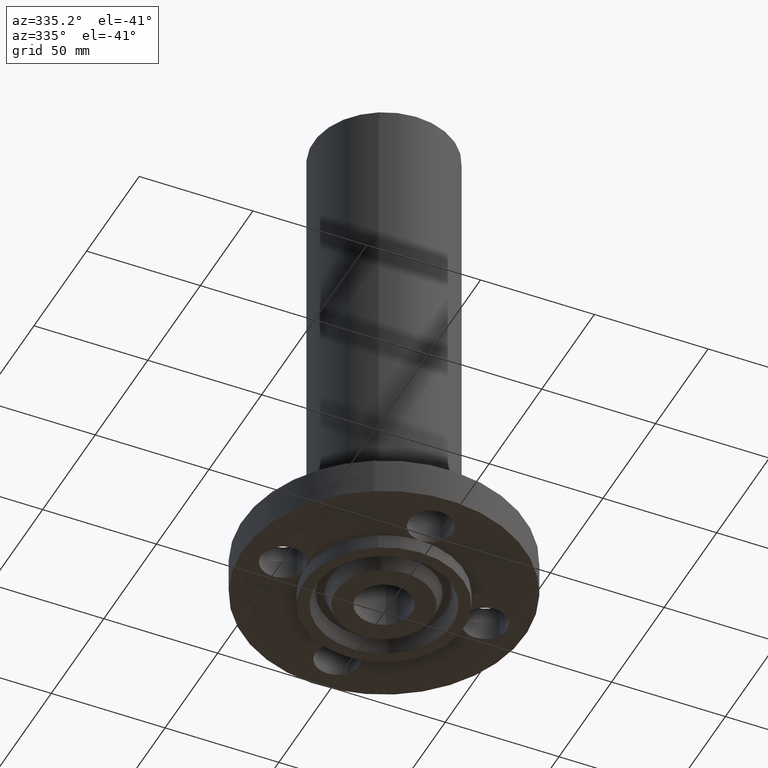
[diagram: clean part render]
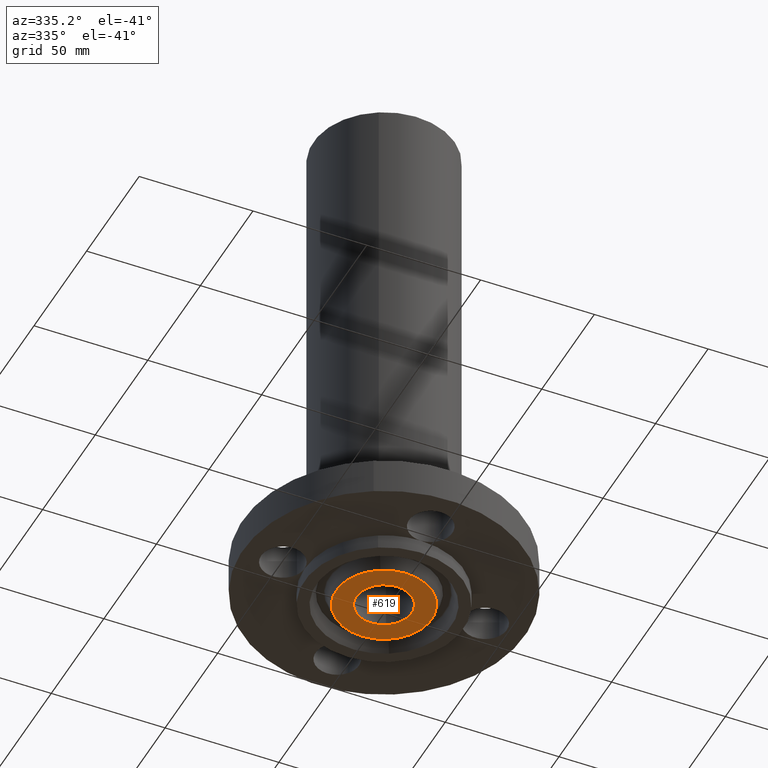
[diagram: same view with one face highlighted and labeled with its STEP entity id]
A machine part, auxiliary view. The second image highlights one B-rep face of the part: STEP entity #619.
In plain terms, the highlighted planar face has unit normal (0, 0, -1).
Its self-contained STEP definition (entity closure, byte-faithful):
#563=AXIS2_PLACEMENT_3D('Circle Axis2P3D',#561,#562,$) ;
#582=AXIS2_PLACEMENT_3D('Circle Axis2P3D',#580,#581,$) ;
#595=AXIS2_PLACEMENT_3D('Plane Axis2P3D',#592,#593,#594) ;
#599=AXIS2_PLACEMENT_3D('Circle Axis2P3D',#597,#598,$) ;
#608=AXIS2_PLACEMENT_3D('Circle Axis2P3D',#606,#607,$) ;
#558=CARTESIAN_POINT('Vertex',(0.230124258531,0.421239629709,-0.250000000001)) ;
#561=CARTESIAN_POINT('Axis2P3D Location',(0.,0.,-0.250000000001)) ;
#565=CARTESIAN_POINT('Vertex',(-0.230124258531,-0.421239629709,-0.250000000001)) ;
#580=CARTESIAN_POINT('Axis2P3D Location',(0.,0.,-0.250000000001)) ;
#592=CARTESIAN_POINT('Axis2P3D Location',(0.,0.828000000003,-0.250000000001)) ;
#597=CARTESIAN_POINT('Axis2P3D Location',(0.,0.,-0.250000000001)) ;
#601=CARTESIAN_POINT('Vertex',(-0.396964345966,-0.726638361248,-0.250000000001)) ;
#603=CARTESIAN_POINT('Vertex',(0.396964345966,0.726638361248,-0.250000000001)) ;
#606=CARTESIAN_POINT('Axis2P3D Location',(0.,0.,-0.250000000001)) ;
#562=DIRECTION('Axis2P3D Direction',(0.,0.,-0.0393700787402)) ;
#581=DIRECTION('Axis2P3D Direction',(0.,0.,-0.0393700787402)) ;
#593=DIRECTION('Axis2P3D Direction',(0.,0.,-0.0393700787402)) ;
#594=DIRECTION('Axis2P3D XDirection',(0.0393700787402,0.,0.)) ;
#598=DIRECTION('Axis2P3D Direction',(0.,0.,-0.0393700787402)) ;
#607=DIRECTION('Axis2P3D Direction',(0.,0.,-0.0393700787402)) ;
#612=ORIENTED_EDGE('',*,*,#605,.T.) ;
#613=ORIENTED_EDGE('',*,*,#610,.T.) ;
#616=ORIENTED_EDGE('',*,*,#567,.F.) ;
#617=ORIENTED_EDGE('',*,*,#584,.F.) ;
#618=FACE_BOUND('',#615,.T.) ;
#619=ADVANCED_FACE('PartBody',(#614,#618),#596,.T.) ;
#564=CIRCLE('generated circle',#563,0.480000000002) ;
#583=CIRCLE('generated circle',#582,0.480000000002) ;
#600=CIRCLE('generated circle',#599,0.828000000003) ;
#609=CIRCLE('generated circle',#608,0.828000000003) ;
#567=EDGE_CURVE('',#559,#566,#564,.T.) ;
#584=EDGE_CURVE('',#566,#559,#583,.T.) ;
#605=EDGE_CURVE('',#602,#604,#600,.T.) ;
#610=EDGE_CURVE('',#604,#602,#609,.T.) ;
#611=EDGE_LOOP('',(#612,#613)) ;
#615=EDGE_LOOP('',(#616,#617)) ;
#614=FACE_OUTER_BOUND('',#611,.T.) ;
#596=PLANE('',#595) ;
#559=VERTEX_POINT('',#558) ;
#566=VERTEX_POINT('',#565) ;
#602=VERTEX_POINT('',#601) ;
#604=VERTEX_POINT('',#603) ;